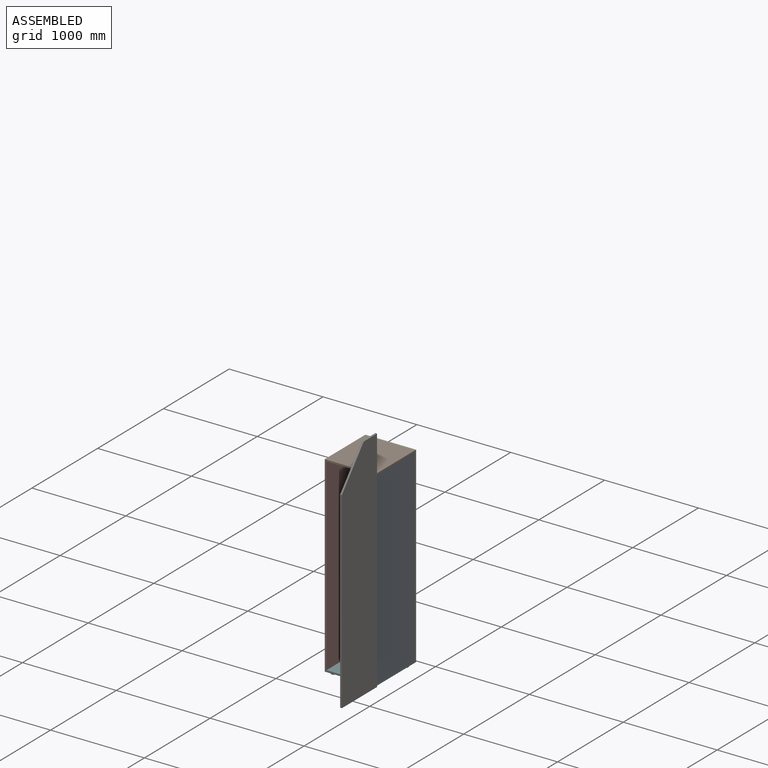
[diagram: assembled view]
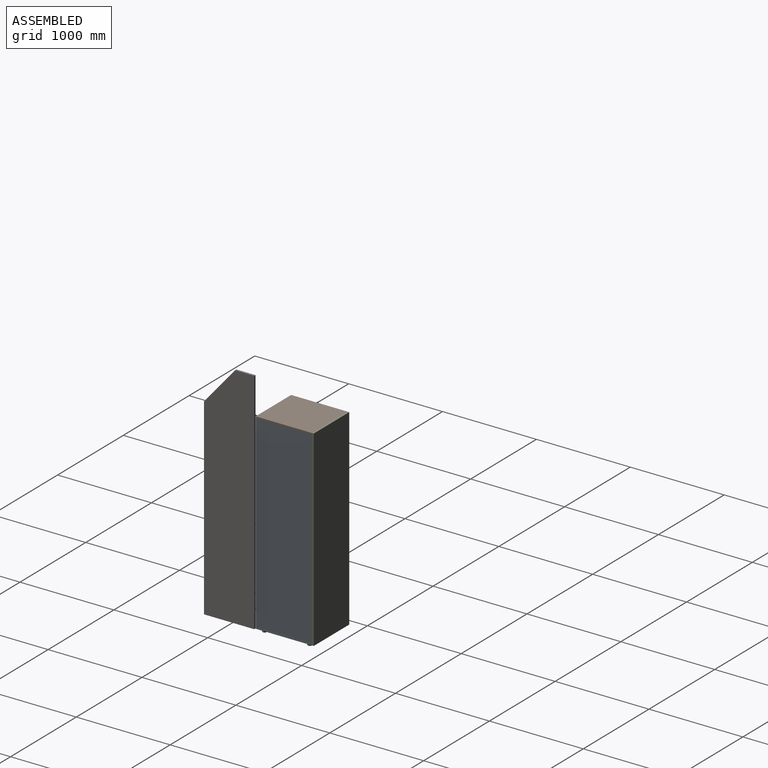
[diagram: assembled view, second angle]
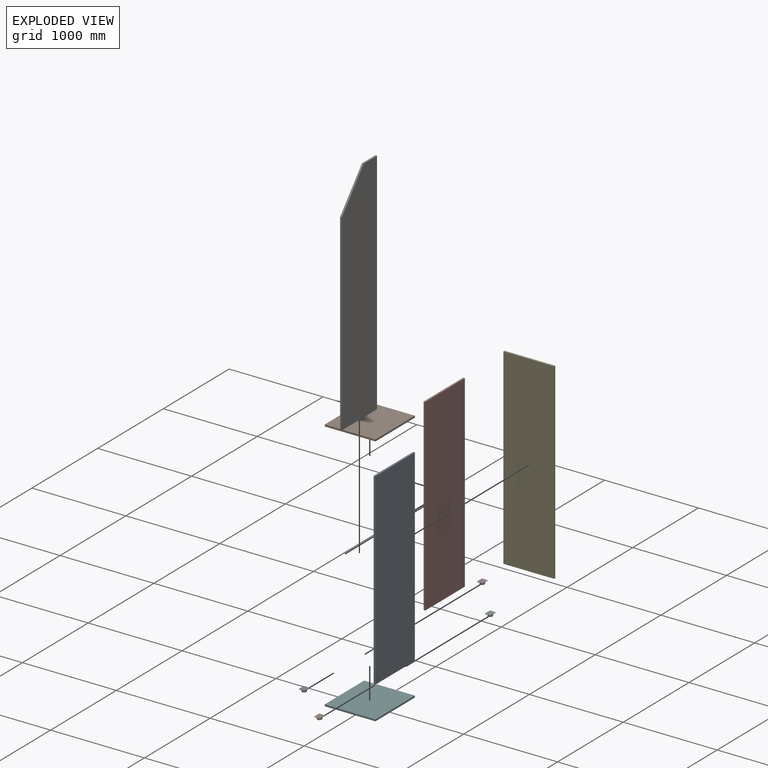
[diagram: exploded view]
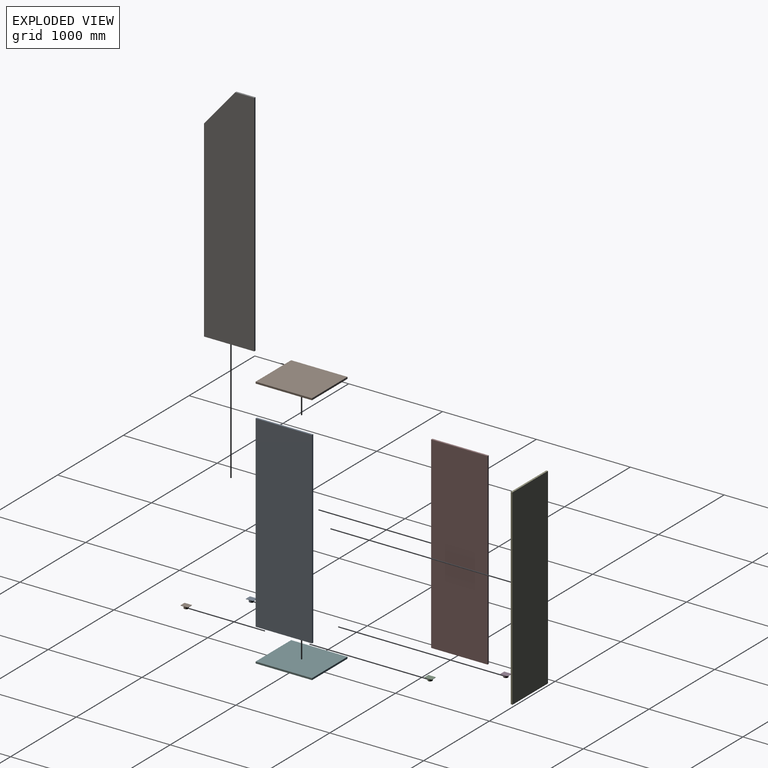
[diagram: exploded view, second angle]
FCSTD DOCUMENT  (FreeCAD 1.0RUnknown)
Label: wardrobe_corpus00_jan
License: All rights reserved
LicenseURL: https://en.wikipedia.org/wiki/All_rights_reserved
objects: App::Link×17, App::FeaturePython×11, Assembly::AssemblyLink×1, Assembly::JointGroup×1, Assembly::AssemblyObject×1
EXTERNAL_REF file=parts/wardrobe_base_jan.FCStd obj=Body
EXTERNAL_REF file=parts/wardrobe_right_corpus00_jan.FCStd obj=Body002
EXTERNAL_REF file=parts/wardrobe_left_corpus00_jan.FCStd obj=Body001
EXTERNAL_REF file=parts/wardrobe_top_jan.FCStd obj=Body003
EXTERNAL_REF file=parts/wardrobe_backplate_corpus00_jan.FCStd obj=Body004
EXTERNAL_REF file=../purchased parts/hettich-level-adjustment.FCStd obj=Body
EXTERNAL_REF file=parts/wardrobe_door_corpus00_jan.FCStd obj=Body
EXTERNAL_REF file=wardrobe_drawer_jan.FCStd obj=Assembly
EXTERNAL_REF file=wardrobe_drawer_jan.FCStd obj=hettich_rail_550
EXTERNAL_REF file=wardrobe_drawer_jan.FCStd obj=hettich_rail_551
EXTERNAL_REF file=wardrobe_drawer_jan.FCStd obj=drawer_sides
EXTERNAL_REF file=wardrobe_drawer_jan.FCStd obj=drawer_sides001
EXTERNAL_REF file=wardrobe_drawer_jan.FCStd obj=drawer_back
EXTERNAL_REF file=wardrobe_drawer_jan.FCStd obj=drawer_bottom
EXTERNAL_REF file=wardrobe_drawer_jan.FCStd obj=drawer_front

FEATURE [App::Link] wardrobe_base_jan
  LinkedObject = -> <external parts/wardrobe_base_jan.FCStd>#Body
FEATURE [App::FeaturePython] GroundedJoint  # Assembly grounded joint (typed FeaturePython)
  ObjectToGround = -> wardrobe_base_jan
FEATURE [App::Link] wardrobe_right_jan_corpus00  label="wardrobe_right_corpus00_jan"
  LinkPlacement = pos=(251,2.07e-13,1022.5) rot=(0,0,1;0rad)
  LinkedObject = -> <external parts/wardrobe_right_corpus00_jan.FCStd>#Body002
  Placement = pos=(251,2.07e-13,1022.5) rot=(0,0,1;0rad)
FEATURE [App::Link] wardrobe_left_jan_corpus00  label="wardrobe_left_corpus00_jan"
  LinkPlacement = pos=(-270,2.1e-13,1022.5) rot=(0,0,1;0rad)
  LinkedObject = -> <external parts/wardrobe_left_corpus00_jan.FCStd>#Body001
  Placement = pos=(-270,2.1e-13,1022.5) rot=(0,0,1;0rad)
FEATURE [App::Link] wardrobe_top_jan
  LinkPlacement = pos=(-6.835e-13,3.905e-13,2026) rot=(0,0,1;0rad)
  LinkedObject = -> <external parts/wardrobe_top_jan.FCStd>#Body003
  Placement = pos=(-6.835e-13,3.905e-13,2026) rot=(0,0,1;0rad)
FEATURE [App::Link] wardrobe_backplate_jan_corpus00  label="wardrobe_backplate_corpus00_jan"
  LinkPlacement = pos=(-3e-15,300,1022.5) rot=(0,0,1;3.14159rad)
  LinkedObject = -> <external parts/wardrobe_backplate_corpus00_jan.FCStd>#Body004
  Placement = pos=(-3e-15,300,1022.5) rot=(0,0,1;3.14159rad)
FEATURE [App::FeaturePython] Joint002  label="StarrerVerbund002"  # Assembly joint (typed FeaturePython)
  Activated = true
  AngleMax = 0
  AngleMin = 0
  Detach1 = false
  Detach2 = false
  Distance = 0
  Distance2 = 0
  EnableAngleMax = false
  EnableAngleMin = false
  EnableLengthMax = false
  EnableLengthMin = false
  JointType = 0 (Fixed)
  LengthMax = 0
  LengthMin = 0
  Offset2 = pos=(0,0,0) rot=(0,0,1;3.14159rad)
  Placement1 = pos=(-3e-15,0,-1022.5) rot=(0.707107,0,0.707107;3.14159rad)
  Placement2 = pos=(0,300,0) rot=(0,1,0;4.71239rad)
  Reference1 = -> Assembly [wardrobe_backplate_jan_corpus00.Edge3,wardrobe_backplate_jan_corpus00.Edge3]
  Reference2 = -> Assembly [wardrobe_base_jan.Edge9,wardrobe_base_jan.Edge9]
FEATURE [App::FeaturePython] Joint  label="StarrerVerbund"  # Assembly joint (typed FeaturePython)
  Activated = true
  AngleMax = 0
  AngleMin = 0
  Detach1 = false
  Detach2 = false
  Distance = 0
  Distance2 = 0
  EnableAngleMax = false
  EnableAngleMin = false
  EnableLengthMax = false
  EnableLengthMin = false
  JointType = 0 (Fixed)
  LengthMax = 0
  LengthMin = 0
  Placement1 = pos=(19,-2.07e-13,-1003.5) rot=(0.57735,0.57735,0.57735;4.18879rad)
  Placement2 = pos=(270,0,19) rot=(0.57735,0.57735,0.57735;4.18879rad)
  Reference1 = -> Assembly [wardrobe_right_jan_corpus00.Edge4,wardrobe_right_jan_corpus00.Edge4]
  Reference2 = -> Assembly [wardrobe_base_jan.Edge7,wardrobe_base_jan.Edge7]
FEATURE [App::FeaturePython] Joint003  label="StarrerVerbund003"  # Assembly joint (typed FeaturePython)
  Activated = true
  AngleMax = 0
  AngleMin = 0
  Detach1 = false
  Detach2 = false
  Distance = 0
  Distance2 = 0
  EnableAngleMax = false
  EnableAngleMin = false
  EnableLengthMax = false
  EnableLengthMin = false
  JointType = 0 (Fixed)
  LengthMax = 0
  LengthMin = 0
  Offset2 = pos=(0,0,0) rot=(0,0,1;3.14159rad)
  Placement1 = pos=(3.411e-13,-2.1e-13,-1003.5) rot=(0.57735,0.57735,0.57735;4.18879rad)
  Placement2 = pos=(-270,0,19) rot=(-0.57735,0.57735,-0.57735;4.18879rad)
  Reference1 = -> Assembly [wardrobe_left_jan_corpus00.Edge3,wardrobe_left_jan_corpus00.Edge3]
  Reference2 = -> Assembly [wardrobe_base_jan.Edge12,wardrobe_base_jan.Edge12]
FEATURE [App::FeaturePython] Joint004  label="StarrerVerbund004"  # Assembly joint (typed FeaturePython)
  Activated = true
  AngleMax = 0
  AngleMin = 0
  Detach1 = false
  Detach2 = false
  Distance = 0
  Distance2 = 0
  EnableAngleMax = false
  EnableAngleMin = false
  EnableLengthMax = false
  EnableLengthMin = false
  JointType = 0 (Fixed)
  LengthMax = 0
  LengthMin = 0
  Offset2 = pos=(0,0,0) rot=(0,0,1;3.14159rad)
  Placement1 = pos=(270,4.3e-15,0) rot=(0.57735,0.57735,0.57735;4.18879rad)
  Placement2 = pos=(19,2.477e-13,1003.5) rot=(-0.57735,0.57735,-0.57735;4.18879rad)
  Reference1 = -> Assembly [wardrobe_top_jan.Edge6,wardrobe_top_jan.Edge6]
  Reference2 = -> Assembly [wardrobe_right_jan_corpus00.Edge10,wardrobe_right_jan_corpus00.Edge10]
FEATURE [App::Link] hettich_level_adjustment  label="hettich-level-adjustment"
  LinkPlacement = pos=(-218.25,-240,-1.33e-14) rot=(0.707107,-0.707107,0;3.14159rad)
  LinkedObject = -> <external ../purchased parts/hettich-level-adjustment.FCStd>#Body
  Placement = pos=(-218.25,-240,-1.33e-14) rot=(0.707107,-0.707107,0;3.14159rad)
FEATURE [App::FeaturePython] Joint005  label="StarrerVerbund005"  # Assembly joint (typed FeaturePython)
  Activated = true
  AngleMax = 0
  AngleMin = 0
  Detach1 = false
  Detach2 = false
  Distance = 0
  Distance2 = 0
  EnableAngleMax = false
  EnableAngleMin = false
  EnableLengthMax = false
  EnableLengthMin = false
  JointType = 0 (Fixed)
  LengthMax = 0
  LengthMin = 0
  Offset1 = pos=(0,-20,-60) rot=(0,0,1;0rad)
  Offset2 = pos=(0,0,0) rot=(0,0,1;3.14159rad)
  Placement1 = pos=(60,51.75,0) rot=(-0.707107,0,0.707107;3.14159rad)
  Placement2 = pos=(-270,-300,0) rot=(-0.57735,0.57735,-0.57735;4.18879rad)
  Reference1 = -> Assembly [hettich_level_adjustment.Edge25,hettich_level_adjustment.Edge25]
  Reference2 = -> Assembly [wardrobe_base_jan.Edge11,wardrobe_base_jan.Vertex1]
FEATURE [App::Link] hettich_level_adjustment001  label="hettich-level-adjustment001"
  LinkPlacement = pos=(218.25,-240,-3.9e-15) rot=(0.707107,-0.707107,0;3.14159rad)
  LinkedObject = -> <external ../purchased parts/hettich-level-adjustment.FCStd>#Body
  Placement = pos=(218.25,-240,-3.9e-15) rot=(0.707107,-0.707107,0;3.14159rad)
FEATURE [App::Link] hettich_level_adjustment002  label="hettich-level-adjustment002"
  LinkPlacement = pos=(218.25,240,-1.33e-14) rot=(0.707107,-0.707107,0;3.14159rad)
  LinkedObject = -> <external ../purchased parts/hettich-level-adjustment.FCStd>#Body
  Placement = pos=(218.25,240,-1.33e-14) rot=(0.707107,-0.707107,0;3.14159rad)
FEATURE [App::Link] hettich_level_adjustment003  label="hettich-level-adjustment003"
  LinkPlacement = pos=(-218.25,240,1.33e-14) rot=(0.707107,0.707107,0;3.14159rad)
  LinkedObject = -> <external ../purchased parts/hettich-level-adjustment.FCStd>#Body
  Placement = pos=(-218.25,240,1.33e-14) rot=(0.707107,0.707107,0;3.14159rad)
FEATURE [App::FeaturePython] Joint006  label="StarrerVerbund006"  # Assembly joint (typed FeaturePython)
  Activated = true
  AngleMax = 0
  AngleMin = 0
  Detach1 = false
  Detach2 = false
  Distance = 0
  Distance2 = 0
  EnableAngleMax = false
  EnableAngleMin = false
  EnableLengthMax = false
  EnableLengthMin = false
  JointType = 0 (Fixed)
  LengthMax = 0
  LengthMin = 0
  Offset1 = pos=(0,-20,60) rot=(0,0,1;0rad)
  Offset2 = pos=(0,0,0) rot=(0,0,1;3.14159rad)
  Placement1 = pos=(250,-240,0) rot=(0.57735,0.57735,0.57735;4.18879rad)
  Placement2 = pos=(0,-31.75,0) rot=(0,-1,0;4.71239rad)
  Reference1 = -> Assembly [wardrobe_base_jan.Edge6,wardrobe_base_jan.Vertex3]
  Reference2 = -> Assembly [hettich_level_adjustment001.Edge10,hettich_level_adjustment001.Edge10]
FEATURE [App::FeaturePython] Joint007  label="StarrerVerbund007"  # Assembly joint (typed FeaturePython)
  Activated = true
  AngleMax = 0
  AngleMin = 0
  Detach1 = false
  Detach2 = false
  Distance = 0
  Distance2 = 0
  EnableAngleMax = false
  EnableAngleMin = false
  EnableLengthMax = false
  EnableLengthMin = false
  JointType = 0 (Fixed)
  LengthMax = 0
  LengthMin = 0
  Offset1 = pos=(0,20,-60) rot=(0,0,1;0rad)
  Offset2 = pos=(0,0,0) rot=(0,0,1;3.14159rad)
  Placement1 = pos=(-60,-51.75,0) rot=(0.707107,0,0.707107;3.14159rad)
  Placement2 = pos=(270,300,0) rot=(0.57735,-0.57735,-0.57735;4.18879rad)
  Reference1 = -> Assembly [hettich_level_adjustment002.Edge10,hettich_level_adjustment002.Edge10]
  Reference2 = -> Assembly [wardrobe_base_jan.Edge6,wardrobe_base_jan.Vertex5]
FEATURE [App::FeaturePython] Joint008  label="StarrerVerbund008"  # Assembly joint (typed FeaturePython)
  Activated = true
  AngleMax = 0
  AngleMin = 0
  Detach1 = false
  Detach2 = false
  Distance = 0
  Distance2 = 0
  EnableAngleMax = false
  EnableAngleMin = false
  EnableLengthMax = false
  EnableLengthMin = false
  JointType = 0 (Fixed)
  LengthMax = 0
  LengthMin = 0
  Offset1 = pos=(0,20,60) rot=(0,0,1;0rad)
  Placement1 = pos=(60,-51.75,0) rot=(0.707107,0,0.707107;3.14159rad)
  Placement2 = pos=(-270,300,0) rot=(-0.57735,-0.57735,0.57735;4.18879rad)
  Reference1 = -> Assembly [hettich_level_adjustment003.Edge10,hettich_level_adjustment003.Edge10]
  Reference2 = -> Assembly [wardrobe_base_jan.Edge11,wardrobe_base_jan.Vertex7]
FEATURE [App::Link] wardrobe_door_corpus00_jan
  LinkPlacement = pos=(270,-302,2.5) rot=(0.57735,0.57735,0.57735;2.0944rad)
  LinkedObject = -> <external parts/wardrobe_door_corpus00_jan.FCStd>#Body
  Placement = pos=(270,-302,2.5) rot=(0.57735,0.57735,0.57735;2.0944rad)
FEATURE [App::FeaturePython] Joint009  label="Drehverbindung"  # Assembly joint (typed FeaturePython)
  Activated = true
  AngleMax = 90
  AngleMin = 0
  Detach1 = false
  Detach2 = false
  Distance = 0
  Distance2 = 0
  EnableAngleMax = true
  EnableAngleMin = true
  EnableLengthMax = false
  EnableLengthMin = false
  JointType = 1 (Revolute)
  LengthMax = 0
  LengthMin = 0
  Offset1 = pos=(0,2,0) rot=(0,0,1;0rad)
  Offset2 = pos=(0,0,2.5) rot=(0,0,1;0rad)
  Placement1 = pos=(2,0,0) rot=(0.57735,0.57735,0.57735;4.18879rad)
  Placement2 = pos=(270,-300,2.5) rot=(0,0,1;0rad)
  Reference1 = -> Assembly [wardrobe_door_corpus00_jan.Edge3,wardrobe_door_corpus00_jan.Vertex1]
  Reference2 = -> Assembly [wardrobe_base_jan.Edge2,wardrobe_base_jan.Vertex3]
FEATURE [App::Link] hettich_rail_550
  LinkPlacement = pos=(0,-8.67788e-07,0) rot=(0.57735,0.57735,0.57735;2.0944rad)
  LinkedObject = -> <external wardrobe_drawer_jan.FCStd>#hettich_rail_550
  Placement = pos=(0,-8.67788e-07,0) rot=(0.57735,0.57735,0.57735;2.0944rad)
FEATURE [App::Link] hettich_rail_551  label="hettich_rail_550_1"
  LinkPlacement = pos=(502,3.32992e-05,-3.4167e-05) rot=(0.57735,-0.57735,-0.57735;2.0944rad)
  LinkedObject = -> <external wardrobe_drawer_jan.FCStd>#hettich_rail_551
  Placement = pos=(502,3.32992e-05,-3.4167e-05) rot=(0.57735,-0.57735,-0.57735;2.0944rad)
FEATURE [App::Link] drawer_sides
  LinkPlacement = pos=(22,256,72.5) rot=(-0.340731,0.659269,0.659269;0rad)
  LinkedObject = -> <external wardrobe_drawer_jan.FCStd>#drawer_sides
  Placement = pos=(22,256,72.5) rot=(-0.340731,0.659269,0.659269;0rad)
FEATURE [App::Link] drawer_sides001
  LinkPlacement = pos=(480,-256,72.5) rot=(0,0,1;3.14159rad)
  LinkedObject = -> <external wardrobe_drawer_jan.FCStd>#drawer_sides001
  Placement = pos=(480,-256,72.5) rot=(0,0,1;3.14159rad)
FEATURE [App::Link] drawer_back
  LinkPlacement = pos=(489.5,265.5,80.75) rot=(0,0,-1;1.5708rad)
  LinkedObject = -> <external wardrobe_drawer_jan.FCStd>#drawer_back
  Placement = pos=(489.5,265.5,80.75) rot=(0,0,-1;1.5708rad)
FEATURE [App::Link] drawer_bottom
  LinkPlacement = pos=(251,5.75002,-2.50002) rot=(0,0,1;3.14159rad)
  LinkedObject = -> <external wardrobe_drawer_jan.FCStd>#drawer_bottom
  Placement = pos=(251,5.75002,-2.50002) rot=(0,0,1;3.14159rad)
FEATURE [App::Link] drawer_front
  LinkPlacement = pos=(12.5,-265.5,72.5) rot=(0,0,1;1.5708rad)
  LinkedObject = -> <external wardrobe_drawer_jan.FCStd>#drawer_front
  Placement = pos=(12.5,-265.5,72.5) rot=(0,0,1;1.5708rad)
FEATURE [Assembly::AssemblyLink] wardrobe_drawer_jan
  Group = -> [hettich_rail_550,hettich_rail_551,drawer_sides,drawer_sides001,drawer_back,drawer_bottom,drawer_front]
  LinkedObject = -> <external wardrobe_drawer_jan.FCStd>#Assembly
  Origin = -> Origin001
  Placement = pos=(-251,8.67788e-07,56.5) rot=(0.340731,-0.659269,-0.659269;0rad)
  Rigid = true
FEATURE [App::FeaturePython] Joint010  label="StarrerVerbund009"  # Assembly joint (typed FeaturePython)
  Activated = true
  AngleMax = 0
  AngleMin = 0
  Detach1 = false
  Detach2 = false
  Distance = 0
  Distance2 = 0
  EnableAngleMax = false
  EnableAngleMin = false
  EnableLengthMax = false
  EnableLengthMin = false
  JointType = 0 (Fixed)
  LengthMax = 0
  LengthMin = 0
  Offset1 = pos=(0,20,0) rot=(0,0,1;0rad)
  Offset2 = pos=(0,0,0) rot=(0,0,1;1.5708rad)
  Placement1 = pos=(-3.52e-14,-37.5,-1.6e-15) rot=(0.707107,0,0.707107;3.14159rad)
  Placement2 = pos=(19,-2.1e-13,-1003.5) rot=(1,0,0;4.71239rad)
  Reference1 = -> Assembly [wardrobe_drawer_jan.hettich_rail_550.Edge3,wardrobe_drawer_jan.hettich_rail_550.Edge3]
  Reference2 = -> Assembly [wardrobe_left_jan_corpus00.Edge4,wardrobe_left_jan_corpus00.Edge4]
FEATURE [Assembly::JointGroup] Joints
  Group = -> [GroundedJoint,Joint002,Joint,Joint003,Joint004,Joint005,Joint006,Joint007,Joint008,Joint009,Joint010]
FEATURE [Assembly::AssemblyObject] Assembly  label="wardrobe_corpus00_jan"
  Group = -> [Joints,wardrobe_base_jan,GroundedJoint,wardrobe_right_jan_corpus00,wardrobe_left_jan_corpus00,wardrobe_top_jan,wardrobe_backplate_jan_corpus00,Joint002,Joint,Joint003,Joint004,hettich_level_adjustment,Joint005,hettich_level_adjustment001,hettich_level_adjustment002,hettich_level_adjustment003,Joint006,Joint007,Joint008,wardrobe_door_corpus00_jan,Joint009,wardrobe_drawer_jan,Joint010]
  Origin = -> Origin
  Type = Assembly

RESOLVED EXTERNAL PARTS (link-assembly join: the EXTERNAL_REF files above that resolve inside this repo's crawl, each included once):
---- part parts/wardrobe_backplate_corpus00_jan.FCStd = doc fcstd_ef48b797989f ----
FCSTD DOCUMENT  (FreeCAD 1.0RUnknown)
Label: wardrobe_backplate_corpus00_jan
License: All rights reserved
LicenseURL: https://en.wikipedia.org/wiki/All_rights_reserved
objects: PartDesign::CoordinateSystem×2, Sketcher::SketchObject×1, PartDesign::Pad×1, PartDesign::Body×1
note: 8 computed .brp shape members not serialized (recipe doc carries the construction recipe); baked Part::Feature solids carry a one-line shape summary decoded from their .brp
EXTERNAL_REF file=../../mastersketch.FCStd obj=Spreadsheet

FEATURE [Sketcher::SketchObject] Sketch004
  ArcFitTolerance = 1e-06
  AttachmentSupport = -> [XZ_Plane006]
  FullyConstrained = true
  MakeInternals = false
  MapMode = 5
  Placement = pos=(0,0,0) rot=(1,0,0;1.5708rad)
  expr: Constraints[10] = mastersketch#Spreadsheet.corpus_width
  expr: Constraints[11] = mastersketch#Spreadsheet.corpus_height
  sketch-geometry (5):
    g0: LineSegment StartX=-270 StartY=-1022.5 StartZ=0 EndX=270 EndY=-1022.5 EndZ=0
    g1: LineSegment StartX=270 StartY=-1022.5 StartZ=0 EndX=270 EndY=1022.5 EndZ=0
    g2: LineSegment StartX=270 StartY=1022.5 StartZ=0 EndX=-270 EndY=1022.5 EndZ=0
    g3: LineSegment StartX=-270 StartY=1022.5 StartZ=0 EndX=-270 EndY=-1022.5 EndZ=0
    g4: GeomPoint [constr] X=0 Y=0 Z=0
  constraints (12):
    c: Coincident(g0,g1)
    c: Coincident(g1,g2)
    c: Coincident(g2,g3)
    c: Coincident(g3,g0)
    c: Horizontal(g0)
    c: Horizontal(g2)
    c: Vertical(g1)
    c: Vertical(g3)
    c: Symmetric(g2,g0,g4)
    c: Coincident(g4,g-1)
    c: DistanceX(g0,g0) = 540
    c: DistanceY(g3,g3) = 2045
FEATURE [PartDesign::Pad] Pad004
  Direction = (0,-1,2e-16)
  Length = 19
  Length2 = 10
  Placement = pos=(0,0,0) rot=(1,0,0;1.5708rad)
  Profile = -> Sketch004
  ReferenceAxis = -> Sketch004 [N_Axis]
  Refine = true
  Suppressed = false
  Type = 0
  expr: Length = mastersketch#Spreadsheet.corpus_backplate_thickness
FEATURE [PartDesign::CoordinateSystem] LCS_bottom
  AttacherType = Attacher::AttachEngine3D
  AttachmentSupport = -> [Pad004]
  MapMode = 45
  Placement = pos=(0,-19,-1022.5) rot=(0.57735,0.57735,0.57735;2.0944rad)
FEATURE [PartDesign::CoordinateSystem] LCS_back_right
  AttacherType = Attacher::AttachEngine3D
FEATURE [PartDesign::Body] Body004  label="wardrobe_backplate_corpus00_jan"
  AllowCompound = false
  Group = -> [Sketch004,Pad004,LCS_bottom,LCS_back_right]
  Origin = -> Origin006
  Tip = -> Pad004
---- part parts/wardrobe_base_jan.FCStd = doc fcstd_ceb563eaf676 ----
FCSTD DOCUMENT  (FreeCAD 1.0RUnknown)
Label: wardrobe_base_jan
License: All rights reserved
LicenseURL: https://en.wikipedia.org/wiki/All_rights_reserved
objects: PartDesign::CoordinateSystem×9, Sketcher::SketchObject×2, PartDesign::Pad×1, PartDesign::Body×1
note: 17 computed .brp shape members not serialized (recipe doc carries the construction recipe); baked Part::Feature solids carry a one-line shape summary decoded from their .brp
EXTERNAL_REF file=../../mastersketch.FCStd obj=Spreadsheet

FEATURE [Sketcher::SketchObject] Sketch
  ArcFitTolerance = 1e-06
  AttachmentSupport = -> [XY_Plane]
  FullyConstrained = true
  MakeInternals = false
  MapMode = 5
  expr: Constraints[10] = mastersketch#Spreadsheet.corpus_width
  expr: Constraints[11] = mastersketch#Spreadsheet.corpus_depth
  sketch-geometry (5):
    g0: LineSegment StartX=-270 StartY=-300 StartZ=0 EndX=270 EndY=-300 EndZ=0
    g1: LineSegment StartX=270 StartY=-300 StartZ=0 EndX=270 EndY=300 EndZ=0
    g2: LineSegment StartX=270 StartY=300 StartZ=0 EndX=-270 EndY=300 EndZ=0
    g3: LineSegment StartX=-270 StartY=300 StartZ=0 EndX=-270 EndY=-300 EndZ=0
    g4: GeomPoint [constr] X=0 Y=0 Z=0
  constraints (12):
    c: Coincident(g0,g1)
    c: Coincident(g1,g2)
    c: Coincident(g2,g3)
    c: Coincident(g3,g0)
    c: Horizontal(g0)
    c: Horizontal(g2)
    c: Vertical(g1)
    c: Vertical(g3)
    c: Symmetric(g2,g0,g4)
    c: Coincident(g4,g-1)
    c: DistanceX(g0,g0) = 540
    c: DistanceY(g3,g3) = 600
FEATURE [PartDesign::Pad] Pad
  Direction = (0,0,1)
  Length = 19
  Length2 = 10
  Profile = -> Sketch
  ReferenceAxis = -> Sketch [N_Axis]
  Refine = true
  Suppressed = false
  Type = 0
  expr: Length = mastersketch#Spreadsheet.corpus_outer_thickness
FEATURE [PartDesign::CoordinateSystem] LCS_1  label="LCS_left"
  AttacherType = Attacher::AttachEngine3D
  AttachmentSupport = -> [Pad]
  MapMode = 45
  Placement = pos=(-270,1.42e-14,19) rot=(0,0.707107,0.707107;3.14159rad)
FEATURE [PartDesign::CoordinateSystem] LCS_right  label="LCS-right"
  AttacherType = Attacher::AttachEngine3D
  AttachmentSupport = -> [Pad]
  MapMode = 45
  Placement = pos=(270,-1.42e-14,19) rot=(0,0.707107,0.707107;3.14159rad)
FEATURE [PartDesign::CoordinateSystem] LCS_center
  AttacherType = Attacher::AttachEngine3D
FEATURE [Sketcher::SketchObject] Sketch_1  label="feet_placement"
  ArcFitTolerance = 1e-06
  AttachmentSupport = -> [Pad]
  FullyConstrained = true
  MakeInternals = false
  MapMode = 5
  Placement = pos=(0,0,0) rot=(1,0,0;3.14159rad)
  expr: Constraints[10] = mastersketch#Spreadsheet.corpus_width - 100
  expr: Constraints[11] = mastersketch#Spreadsheet.corpus_depth - 140
  sketch-geometry (5):
    g0: LineSegment StartX=-220 StartY=-230 StartZ=0 EndX=220 EndY=-230 EndZ=0
    g1: LineSegment StartX=220 StartY=-230 StartZ=0 EndX=220 EndY=230 EndZ=0
    g2: LineSegment StartX=220 StartY=230 StartZ=0 EndX=-220 EndY=230 EndZ=0
    g3: LineSegment StartX=-220 StartY=230 StartZ=0 EndX=-220 EndY=-230 EndZ=0
    g4: GeomPoint [constr] X=0 Y=0 Z=0
  constraints (12):
    c: Coincident(g0,g1)
    c: Coincident(g1,g2)
    c: Coincident(g2,g3)
    c: Coincident(g3,g0)
    c: Horizontal(g0)
    c: Horizontal(g2)
    c: Vertical(g1)
    c: Vertical(g3)
    c: Symmetric(g2,g0,g4)
    c: Coincident(g4,g-1)
    c: DistanceX(g0,g0) = 440
    c: DistanceY(g3,g3) = 460
FEATURE [PartDesign::CoordinateSystem] LCS_2  label="LCS_feet0"
  AttacherType = Attacher::AttachEngine3D
  AttachmentSupport = -> [Sketch_1]
  MapMode = 1
  Placement = pos=(-220,-230,0) rot=(0,0,1;0rad)
FEATURE [PartDesign::CoordinateSystem] LCS_feet1
  AttacherType = Attacher::AttachEngine3D
  AttachmentSupport = -> [Sketch_1]
  MapMode = 1
  Placement = pos=(220,-230,0) rot=(0,0,1;0rad)
FEATURE [PartDesign::CoordinateSystem] LCS_feet2
  AttacherType = Attacher::AttachEngine3D
  AttachmentSupport = -> [Sketch_1]
  MapMode = 1
  Placement = pos=(220,230,0) rot=(0,0,1;0rad)
FEATURE [PartDesign::CoordinateSystem] LCS_feet3
  AttacherType = Attacher::AttachEngine3D
  AttachmentSupport = -> [Sketch_1]
  MapMode = 1
  Placement = pos=(-220,230,0) rot=(0,0,1;0rad)
FEATURE [PartDesign::CoordinateSystem] LCS_back
  AttacherType = Attacher::AttachEngine3D
  AttachmentSupport = -> [Pad]
  MapMode = 45
  Placement = pos=(0,300,0) rot=(0.57735,0.57735,0.57735;2.0944rad)
FEATURE [PartDesign::CoordinateSystem] LCS_door
  AttacherType = Attacher::AttachEngine3D
  AttachmentSupport = -> [Pad]
  MapMode = 7
  Placement = pos=(270,-300,0) rot=(0,1,0;3.14159rad)
FEATURE [PartDesign::Body] Body  label="wardrobe_base_jan"
  AllowCompound = false
  Group = -> [Sketch,Pad,LCS_1,LCS_right,LCS_center,Sketch_1,LCS_2,LCS_feet1,LCS_feet2,LCS_feet3,LCS_back,LCS_door]
  Origin = -> Origin
  Tip = -> Pad
---- part parts/wardrobe_door_corpus00_jan.FCStd = doc fcstd_de45f609bab9 ----
FCSTD DOCUMENT  (FreeCAD 1.0R39285 (Git))
Label: wardrobe_door_corpus00_jan
License: All rights reserved
LicenseURL: https://en.wikipedia.org/wiki/All_rights_reserved
objects: TechDraw::DrawViewDimension×7, PartDesign::CoordinateSystem×2, TechDraw::DrawProjGroupItem×2, Sketcher::SketchObject×1, PartDesign::Pad×1, PartDesign::Body×1, TechDraw::DrawSVGTemplate×1, TechDraw::DrawViewAnnotation×1, App::Part×1, TechDraw::DrawPage×1
note: 17 computed .brp shape members not serialized (recipe doc carries the construction recipe); baked Part::Feature solids carry a one-line shape summary decoded from their .brp
EXTERNAL_REF file=../../mastersheet.FCStd obj=Spreadsheet
EXTERNAL_REF file=../../mastersketch.FCStd obj=Sketch

FEATURE [Sketcher::SketchObject] Sketch
  ArcFitTolerance = 1e-06
  AttachmentSupport = -> [XY_Plane]
  FullyConstrained = true
  MakeInternals = false
  MapMode = 5
  expr: Constraints[0] = mastersketch#Sketch.Constraints.corpus00_door_height
  expr: Constraints[12] = mastersketch#Sketch.Constraints.alpha
  expr: Constraints[13] = mastersketch#Sketch.Constraints.corpus00_door_top
  expr: Constraints[5] = mastersheet#Spreadsheet.corpus_width - 5
  sketch-geometry (5):
    g0: LineSegment StartX=0 StartY=0 StartZ=0 EndX=0 EndY=2440 EndZ=0
    g1: LineSegment StartX=0 StartY=2440 StartZ=0 EndX=-202.892 EndY=2440 EndZ=0
    g2: LineSegment StartX=0 StartY=0 StartZ=0 EndX=-535 EndY=0 EndZ=0
    g3: LineSegment StartX=-535 StartY=0 StartZ=0 EndX=-535 EndY=2051.4 EndZ=0
    g4: LineSegment StartX=-535 StartY=2051.4 StartZ=0 EndX=-202.892 EndY=2440 EndZ=0
  constraints (14):
    c: Distance(g0) = 2440
    c: Coincident(g0,g-1)
    c: Vertical(g0)
    c: Coincident(g1,g0)
    c: Horizontal(g1)
    c: Distance(g2) = 535
    c: Coincident(g2,g0)
    c: PointOnObject(g2,g-1)
    c: Vertical(g3)
    c: Coincident(g4,g1)
    c: Coincident(g4,g3)
    c: Coincident(g3,g2)
    c: Angle(g3,g4) = 2.43442
    c: DistanceX(g1,g1) = 202.892
FEATURE [PartDesign::Pad] Pad
  Direction = (0,0,1)
  Length = 19
  Length2 = 10
  Profile = -> Sketch
  ReferenceAxis = -> Sketch [N_Axis]
  Refine = true
  Suppressed = false
  Type = 0
FEATURE [PartDesign::Body] Body  label="wardrobe_door_corpus00_jan"
  AllowCompound = false
  Group = -> [Sketch,Pad]
  Origin = -> Origin
  Tip = -> Pad
FEATURE [PartDesign::CoordinateSystem] LCS_right
  AttacherType = Attacher::AttachEngine3D
  AttachmentSupport = -> [Pad]
  MapMode = 7
  Placement = pos=(0,0,0) rot=(1,0,0;1.5708rad)
FEATURE [TechDraw::DrawSVGTemplate] Template  label="Vorlage"
  Height = 210
  Orientation = 1
  Template = <userpath>/scoop/apps/freecad/current/data/Mod/TechDraw/Templates/A4_Landscape_TD.svg
  Width = 297
FEATURE [TechDraw::DrawProjGroupItem] View  label="Oben"
  CoarseView = false
  Direction = (0,0,-1)
  Focus = 100
  HardHidden = false
  IsoCount = 0
  IsoHidden = false
  IsoVisible = false
  LockPosition = false
  Perspective = false
  Rotation = 0
  RotationVector = (1,0,0)
  Scale = 0.1
  ScaleType = 2
  ScrubCount = 1
  SeamHidden = false
  SeamVisible = false
  SmoothHidden = false
  SmoothVisible = true
  Source = -> [Body]
  Type = 0
  X = 142.185
  XDirection = (1e-16,-1,0)
  Y = 151.82
FEATURE [TechDraw::DrawProjGroupItem] View001  label="Seite"
  CoarseView = false
  Direction = (-1,-1e-16,0)
  Focus = 100
  HardHidden = false
  IsoCount = 0
  IsoHidden = false
  IsoVisible = false
  LockPosition = false
  Perspective = false
  Rotation = 0
  RotationVector = (1,0,0)
  Scale = 0.1
  ScaleType = 2
  ScrubCount = 1
  SeamHidden = false
  SeamVisible = false
  SmoothHidden = false
  SmoothVisible = true
  Source = -> [Body]
  Type = 0
  X = 143.628
  XDirection = (1e-16,-1,0)
  Y = 90.5756
FEATURE [TechDraw::DrawViewDimension] Dimension  label="Maß"
  AngleOverride = false
  Arbitrary = false
  ArbitraryTolerances = false
  BoxCorners = (2) [(-122,-26.75,0),(122,26.75,0)]
  EqualTolerance = true
  ExtensionAngle = 0
  FormatSpec = %.2w
  FormatSpecOverTolerance = %+.2w
  FormatSpecUnderTolerance = %+.2w
  Inverted = false
  LineAngle = 0
  LockPosition = false
  MeasureType = 1
  OverTolerance = 0
  References2D = -> [View]
  Rotation = 0
  ScaleType = 0
  TheoreticalExact = false
  Type = 0
  UnderTolerance = 0
  X = 129.212
  Y = 0
FEATURE [TechDraw::DrawViewDimension] Dimension001  label="Maß001"
  AngleOverride = false
  Arbitrary = false
  ArbitraryTolerances = false
  BoxCorners = (2) [(-122,-26.75,0),(122,26.75,0)]
  EqualTolerance = true
  ExtensionAngle = 0
  FormatSpec = %.2w
  FormatSpecOverTolerance = %+.2w
  FormatSpecUnderTolerance = %+.2w
  Inverted = false
  LineAngle = 0
  LockPosition = false
  MeasureType = 1
  OverTolerance = 0
  References2D = -> [View]
  Rotation = 0
  ScaleType = 0
  TheoreticalExact = false
  Type = 1
  UnderTolerance = 0
  X = 0
  Y = -32.8109
FEATURE [TechDraw::DrawViewDimension] Dimension002  label="Maß002"
  AngleOverride = false
  Arbitrary = false
  ArbitraryTolerances = false
  BoxCorners = (2) [(-122,-26.75,0),(122,26.75,0)]
  EqualTolerance = true
  ExtensionAngle = 0
  FormatSpec = %.2w
  FormatSpecOverTolerance = %+.2w
  FormatSpecUnderTolerance = %+.2w
  Inverted = false
  LineAngle = 0
  LockPosition = false
  MeasureType = 1
  OverTolerance = 0
  References2D = -> [View]
  Rotation = 0
  ScaleType = 0
  TheoreticalExact = false
  Type = 1
  UnderTolerance = 0
  X = 19.43
  Y = 40.4934
FEATURE [TechDraw::DrawViewDimension] Dimension003  label="Maß003"
  AngleOverride = false
  Arbitrary = false
  ArbitraryTolerances = false
  BoxCorners = (2) [(-122,-26.75,0),(122,26.75,0)]
  EqualTolerance = true
  ExtensionAngle = 0
  FormatSpec = %.1w
  FormatSpecOverTolerance = %+.2w
  FormatSpecUnderTolerance = %+.2w
  Inverted = false
  LineAngle = 0
  LockPosition = false
  MeasureType = 1
  OverTolerance = 0
  References2D = -> [View]
  Rotation = 0
  ScaleType = 0
  TheoreticalExact = false
  Type = 2
  UnderTolerance = 0
  X = -102.279
  Y = -16.6054
FEATURE [TechDraw::DrawViewDimension] Dimension004  label="Maß004"
  AngleOverride = false
  Arbitrary = false
  ArbitraryTolerances = false
  BoxCorners = (2) [(-122,-0.9,0),(122,0.9,0)]
  EqualTolerance = true
  ExtensionAngle = 0
  FormatSpec = %.2w
  FormatSpecOverTolerance = %+.2w
  FormatSpecUnderTolerance = %+.2w
  Inverted = false
  LineAngle = 0
  LockPosition = false
  MeasureType = 1
  OverTolerance = 0
  References2D = -> [View001]
  Rotation = 0
  ScaleType = 0
  TheoreticalExact = false
  Type = 0
  UnderTolerance = 0
  X = 124.097
  Y = -13.7815
FEATURE [TechDraw::DrawViewDimension] Dimension005  label="Maß005"
  AngleOverride = false
  Arbitrary = false
  ArbitraryTolerances = false
  BoxCorners = (2) [(-122,-26.75,0),(122,26.75,0)]
  EqualTolerance = true
  ExtensionAngle = 0
  FormatSpec = (%.1w)
  FormatSpecOverTolerance = %+.1w
  FormatSpecUnderTolerance = %+.1w
  Inverted = false
  LineAngle = 0
  LockPosition = false
  MeasureType = 1
  OverTolerance = 0
  References2D = -> [View]
  Rotation = 0
  ScaleType = 0
  TheoreticalExact = false
  Type = 6
  UnderTolerance = 0
  X = -75.6861
  Y = 12.9628
FEATURE [TechDraw::DrawViewAnnotation] Annotation  label="Beschriftung"
  Font = MS Shell Dlg 2
  LineSpace = 100
  LockPosition = false
  MaxWidth = -1
  Rotation = 0
  ScaleType = 0
  Text = Rev 01
  TextSize = 5
  TextStyle = 0
  X = 271.909
  Y = 62.045
FEATURE [PartDesign::CoordinateSystem] LCS_Origin
  AttacherType = Attacher::AttachEngine3D
  AttachmentSupport = -> [X_Axis001]
  MapMode = 2
FEATURE [App::Part] wardrobe_door_corpus00_jan  label="wardrobe_door_corpus00_jan001"
  DrawingName = wardrobe_door_corpus00_jan.FCStd
  Group = -> [LCS_Origin,LCS_right,Body]
  Origin = -> Origin001
  PartDescription = wardrobe_door_corpus00_jan
  PartID = wardrobe_door_corpus00_jan
FEATURE [TechDraw::DrawViewDimension] Dimension006  label="Maß006"
  AngleOverride = false
  Arbitrary = false
  ArbitraryTolerances = false
  BoxCorners = (2) [(-122,-26.75,0),(122,26.75,0)]
  EqualTolerance = true
  ExtensionAngle = 0
  FormatSpec = (%.1w)
  FormatSpecOverTolerance = %+.1w
  FormatSpecUnderTolerance = %+.1w
  Inverted = false
  LineAngle = 0
  LockPosition = false
  MeasureType = 1
  OverTolerance = 0
  References2D = -> [View]
  Rotation = 0
  ScaleType = 0
  TheoreticalExact = false
  Type = 0
  UnderTolerance = 0
  X = -112.05
  Y = 21.2372
FEATURE [TechDraw::DrawPage] Page  label="Drawing"
  KeepUpdated = true
  NextBalloonIndex = 1
  ProjectionType = 0
  Template = -> Template
  Views = -> [View,View001,Dimension,Dimension001,Dimension002,Dimension003,Dimension004,Dimension005,Annotation,Dimension006]
---- part parts/wardrobe_left_corpus00_jan.FCStd = doc fcstd_2dbd62044285 ----
FCSTD DOCUMENT  (FreeCAD 1.0RUnknown)
Label: wardrobe_left_corpus00_jan
License: All rights reserved
LicenseURL: https://en.wikipedia.org/wiki/All_rights_reserved
objects: PartDesign::CoordinateSystem×3, Sketcher::SketchObject×1, PartDesign::Pad×1, PartDesign::Body×1
note: 9 computed .brp shape members not serialized (recipe doc carries the construction recipe); baked Part::Feature solids carry a one-line shape summary decoded from their .brp
EXTERNAL_REF file=../../mastersketch.FCStd obj=Spreadsheet

FEATURE [Sketcher::SketchObject] Sketch001
  ArcFitTolerance = 1e-06
  AttachmentSupport = -> [YZ_Plane001]
  FullyConstrained = true
  MakeInternals = false
  MapMode = 5
  Placement = pos=(0,0,0) rot=(0.57735,0.57735,0.57735;2.0944rad)
  expr: Constraints[10] = mastersketch#Spreadsheet.corpus_depth
  expr: Constraints[11] = mastersketch#Spreadsheet.corpus_height - 2 * mastersketch#Spreadsheet.corpus_outer_thickness
  sketch-geometry (5):
    g0: LineSegment StartX=-300 StartY=-1003.5 StartZ=0 EndX=300 EndY=-1003.5 EndZ=0
    g1: LineSegment StartX=300 StartY=-1003.5 StartZ=0 EndX=300 EndY=1003.5 EndZ=0
    g2: LineSegment StartX=300 StartY=1003.5 StartZ=0 EndX=-300 EndY=1003.5 EndZ=0
    g3: LineSegment StartX=-300 StartY=1003.5 StartZ=0 EndX=-300 EndY=-1003.5 EndZ=0
    g4: GeomPoint [constr] X=0 Y=0 Z=0
  constraints (12):
    c: Coincident(g0,g1)
    c: Coincident(g1,g2)
    c: Coincident(g2,g3)
    c: Coincident(g3,g0)
    c: Horizontal(g0)
    c: Horizontal(g2)
    c: Vertical(g1)
    c: Vertical(g3)
    c: Symmetric(g2,g0,g4)
    c: Coincident(g4,g-1)
    c: DistanceX(g0,g0) = 600
    c: DistanceY(g3,g3) = 2007
FEATURE [PartDesign::Pad] Pad001
  Direction = (1,0,0)
  Length = 19
  Length2 = 10
  Placement = pos=(0,0,0) rot=(1,1,1;2.0944rad)
  Profile = -> Sketch001
  ReferenceAxis = -> Sketch001 [N_Axis]
  Refine = true
  Suppressed = false
  Type = 0
  expr: Length = mastersketch#Spreadsheet.corpus_outer_thickness
FEATURE [PartDesign::CoordinateSystem] LCS_bottom
  AttacherType = Attacher::AttachEngine3D
  AttachmentSupport = -> [Pad001]
  MapMode = 45
  Placement = pos=(0,-1.42e-14,-1003.5) rot=(0,0.707107,0.707107;3.14159rad)
FEATURE [PartDesign::CoordinateSystem] LCS_top
  AttacherType = Attacher::AttachEngine3D
  AttachmentSupport = -> [Pad001]
  MapMode = 45
  Placement = pos=(0,1.42e-14,1003.5) rot=(0,0.707107,0.707107;3.14159rad)
FEATURE [PartDesign::CoordinateSystem] LCS_inner_bottom
  AttacherType = Attacher::AttachEngine3D
  AttachmentSupport = -> [Pad001]
  MapMode = 45
  Placement = pos=(19,-1.82e-14,-1003.5) rot=(0,0.707107,0.707107;3.14159rad)
FEATURE [PartDesign::Body] Body001  label="wardrobe_left_corpus00_jan"
  AllowCompound = false
  Group = -> [Sketch001,Pad001,LCS_bottom,LCS_top,LCS_inner_bottom]
  Origin = -> Origin001
  Tip = -> Pad001
---- part parts/wardrobe_right_corpus00_jan.FCStd = doc fcstd_c843c1e678e7 ----
FCSTD DOCUMENT  (FreeCAD 1.0RUnknown)
Label: wardrobe_right_corpus00_jan
License: All rights reserved
LicenseURL: https://en.wikipedia.org/wiki/All_rights_reserved
objects: Sketcher::SketchObject×1, PartDesign::Pad×1, PartDesign::CoordinateSystem×1, PartDesign::Body×1
note: 7 computed .brp shape members not serialized (recipe doc carries the construction recipe); baked Part::Feature solids carry a one-line shape summary decoded from their .brp
EXTERNAL_REF file=../../mastersketch.FCStd obj=Spreadsheet

FEATURE [Sketcher::SketchObject] Sketch002
  ArcFitTolerance = 1e-06
  AttachmentSupport = -> [YZ_Plane004]
  FullyConstrained = true
  MakeInternals = true
  MapMode = 5
  Placement = pos=(0,0,0) rot=(0.57735,0.57735,0.57735;2.0944rad)
  expr: Constraints[10] = mastersketch#Spreadsheet.corpus_depth
  expr: Constraints[11] = mastersketch#Spreadsheet.corpus_height - 2 * mastersketch#Spreadsheet.corpus_outer_thickness
  sketch-geometry (5):
    g0: LineSegment StartX=-300 StartY=-1003.5 StartZ=0 EndX=300 EndY=-1003.5 EndZ=0
    g1: LineSegment StartX=300 StartY=-1003.5 StartZ=0 EndX=300 EndY=1003.5 EndZ=0
    g2: LineSegment StartX=300 StartY=1003.5 StartZ=0 EndX=-300 EndY=1003.5 EndZ=0
    g3: LineSegment StartX=-300 StartY=1003.5 StartZ=0 EndX=-300 EndY=-1003.5 EndZ=0
    g4: GeomPoint [constr] X=0 Y=0 Z=0
  constraints (12):
    c: Coincident(g0,g1)
    c: Coincident(g1,g2)
    c: Coincident(g2,g3)
    c: Coincident(g3,g0)
    c: Horizontal(g0)
    c: Horizontal(g2)
    c: Vertical(g1)
    c: Vertical(g3)
    c: Symmetric(g2,g0,g4)
    c: Coincident(g4,g-1)
    c: DistanceX(g0,g0) = 600
    c: DistanceY(g3,g3) = 2007
FEATURE [PartDesign::Pad] Pad002
  Direction = (1,0,0)
  Length = 19
  Length2 = 10
  Placement = pos=(0,0,0) rot=(1,1,1;2.0944rad)
  Profile = -> Sketch002
  ReferenceAxis = -> Sketch002 [N_Axis]
  Refine = true
  Suppressed = false
  Type = 0
  expr: Length = mastersketch#Spreadsheet.corpus_outer_thickness
FEATURE [PartDesign::CoordinateSystem] LCS_bottom
  AttacherType = Attacher::AttachEngine3D
  AttachmentSupport = -> [Pad002]
  MapMode = 45
  Placement = pos=(19,-1.82e-14,-1003.5) rot=(0,0.707107,0.707107;3.14159rad)
FEATURE [PartDesign::Body] Body002  label="wardrobe_right_corpus00_jan"
  AllowCompound = false
  Group = -> [Sketch002,Pad002,LCS_bottom]
  Origin = -> Origin004
  Tip = -> Pad002
---- part parts/wardrobe_top_jan.FCStd = doc fcstd_5a1df6a9867d ----
FCSTD DOCUMENT  (FreeCAD 1.0RUnknown)
Label: wardrobe_top_jan
License: All rights reserved
LicenseURL: https://en.wikipedia.org/wiki/All_rights_reserved
objects: Sketcher::SketchObject×1, PartDesign::Pad×1, PartDesign::CoordinateSystem×1, PartDesign::Body×1
note: 7 computed .brp shape members not serialized (recipe doc carries the construction recipe); baked Part::Feature solids carry a one-line shape summary decoded from their .brp
EXTERNAL_REF file=../../mastersketch.FCStd obj=Spreadsheet

FEATURE [Sketcher::SketchObject] Sketch003
  ArcFitTolerance = 1e-06
  AttachmentSupport = -> [XY_Plane005]
  FullyConstrained = true
  MakeInternals = false
  MapMode = 5
  expr: Constraints[10] = mastersketch#Spreadsheet.corpus_width
  expr: Constraints[11] = mastersketch#Spreadsheet.corpus_depth
  sketch-geometry (5):
    g0: LineSegment StartX=-270 StartY=-300 StartZ=0 EndX=270 EndY=-300 EndZ=0
    g1: LineSegment StartX=270 StartY=-300 StartZ=0 EndX=270 EndY=300 EndZ=0
    g2: LineSegment StartX=270 StartY=300 StartZ=0 EndX=-270 EndY=300 EndZ=0
    g3: LineSegment StartX=-270 StartY=300 StartZ=0 EndX=-270 EndY=-300 EndZ=0
    g4: GeomPoint [constr] X=0 Y=0 Z=0
  constraints (12):
    c: Coincident(g0,g1)
    c: Coincident(g1,g2)
    c: Coincident(g2,g3)
    c: Coincident(g3,g0)
    c: Horizontal(g0)
    c: Horizontal(g2)
    c: Vertical(g1)
    c: Vertical(g3)
    c: Symmetric(g2,g0,g4)
    c: Coincident(g4,g-1)
    c: DistanceX(g0,g0) = 540
    c: DistanceY(g3,g3) = 600
FEATURE [PartDesign::Pad] Pad003
  Direction = (0,0,1)
  Length = 19
  Length2 = 10
  Profile = -> Sketch003
  ReferenceAxis = -> Sketch003 [N_Axis]
  Refine = true
  Suppressed = false
  Type = 0
  expr: Length = mastersketch#Spreadsheet.corpus_outer_thickness
FEATURE [PartDesign::CoordinateSystem] LCS_left
  AttacherType = Attacher::AttachEngine3D
  AttachmentSupport = -> [Pad003]
  MapMode = 45
  Placement = pos=(-270,1.42e-14,0) rot=(0,0.707107,0.707107;3.14159rad)
FEATURE [PartDesign::Body] Body003  label="wardrobe_top_jan"
  AllowCompound = false
  Group = -> [Sketch003,Pad003,LCS_left]
  Origin = -> Origin005
  Tip = -> Pad003
---- part wardrobe_drawer_jan.FCStd = doc fcstd_7002e96fd710 ----
FCSTD DOCUMENT  (FreeCAD 1.0RUnknown)
Label: wardrobe_drawer_jan
License: All rights reserved
objects: App::FeaturePython×11, App::Link×7, Assembly::JointGroup×1, Assembly::AssemblyObject×1
EXTERNAL_REF file=../purchased parts/hettich_rail_550mm.FCStd obj=Body
EXTERNAL_REF file=parts/drawer_sides.FCStd obj=Body
EXTERNAL_REF file=parts/drawer_back.FCStd obj=Body
EXTERNAL_REF file=parts/drawer_bottom.FCStd obj=Body
EXTERNAL_REF file=parts/drawer_front.FCStd obj=Body

FEATURE [App::Link] hettich_rail_550
  LinkPlacement = pos=(0,-8.67788e-07,0) rot=(0.57735,0.57735,0.57735;2.0944rad)
  LinkedObject = -> <external ../purchased parts/hettich_rail_550mm.FCStd>#Body
  Placement = pos=(0,-8.67788e-07,0) rot=(0.57735,0.57735,0.57735;2.0944rad)
FEATURE [App::Link] hettich_rail_551  label="hettich_rail_550_1"
  LinkPlacement = pos=(502,3.32992e-05,-3.4167e-05) rot=(0.57735,-0.57735,-0.57735;2.0944rad)
  LinkedObject = -> <external ../purchased parts/hettich_rail_550mm.FCStd>#Body
  Placement = pos=(502,3.32992e-05,-3.4167e-05) rot=(0.57735,-0.57735,-0.57735;2.0944rad)
FEATURE [App::Link] drawer_sides
  LinkPlacement = pos=(22,256,72.5) rot=(-0.340731,0.659269,0.659269;0rad)
  LinkedObject = -> <external parts/drawer_sides.FCStd>#Body
  Placement = pos=(22,256,72.5) rot=(-0.340731,0.659269,0.659269;0rad)
FEATURE [App::Link] drawer_sides001
  LinkPlacement = pos=(480,-256,72.5) rot=(0,0,1;3.14159rad)
  LinkedObject = -> <external parts/drawer_sides.FCStd>#Body
  Placement = pos=(480,-256,72.5) rot=(0,0,1;3.14159rad)
FEATURE [App::Link] drawer_back
  LinkPlacement = pos=(489.5,265.5,80.75) rot=(0,0,-1;1.5708rad)
  LinkedObject = -> <external parts/drawer_back.FCStd>#Body
  Placement = pos=(489.5,265.5,80.75) rot=(0,0,-1;1.5708rad)
FEATURE [App::Link] drawer_bottom
  LinkPlacement = pos=(251,5.75002,-2.50002) rot=(0,0,1;3.14159rad)
  LinkedObject = -> <external parts/drawer_bottom.FCStd>#Body
  Placement = pos=(251,5.75002,-2.50002) rot=(0,0,1;3.14159rad)
FEATURE [App::Link] drawer_front
  LinkPlacement = pos=(12.5,-265.5,72.5) rot=(0,0,1;1.5708rad)
  LinkedObject = -> <external parts/drawer_front.FCStd>#Body
  Placement = pos=(12.5,-265.5,72.5) rot=(0,0,1;1.5708rad)
FEATURE [App::FeaturePython] GroundedJoint  # Assembly grounded joint (typed FeaturePython)
  ObjectToGround = -> hettich_rail_550
  Placement = pos=(0,-8.67788e-07,0) rot=(0.57735,0.57735,0.57735;2.0944rad)
FEATURE [App::FeaturePython] Joint  label="Gleitverbindung"  # Assembly joint (typed FeaturePython)
  Activated = true
  AngleMax = 0
  AngleMin = 0
  Detach1 = false
  Detach2 = false
  Distance = 0
  Distance2 = 0
  EnableAngleMax = false
  EnableAngleMin = false
  EnableLengthMax = true
  EnableLengthMin = true
  JointType = 3 (Slider)
  LengthMax = 275
  LengthMin = -100
  Offset2 = pos=(0,0,0) rot=(0,0,1;1.5708rad)
  Placement1 = pos=(-9.5,-256,-85) rot=(-0.57735,-0.57735,0.57735;4.18879rad)
  Placement2 = pos=(-275,-12.5,12.5) rot=(-0.57735,0.57735,0.57735;4.18879rad)
  Reference1 = -> Assembly [drawer_sides.Edge8,drawer_sides.Edge8]
  Reference2 = -> Assembly [hettich_rail_550.Edge16,hettich_rail_550.Vertex11]
FEATURE [App::FeaturePython] Joint003  label="Parallel"  # Assembly joint (typed FeaturePython)
  Activated = true
  AngleMax = 0
  AngleMin = 0
  Detach1 = false
  Detach2 = false
  Distance = 0
  Distance2 = 0
  EnableAngleMax = false
  EnableAngleMin = false
  EnableLengthMax = false
  EnableLengthMin = false
  JointType = 6 (Parallel)
  LengthMax = 0
  LengthMin = 0
  Placement1 = pos=(275,-12.5,12.5) rot=(0,0,1;0rad)
  Placement2 = pos=(-4e-16,2.5,12.5) rot=(0,0,1;0rad)
  Reference1 = -> Assembly [hettich_rail_550.Face5,hettich_rail_550.Vertex12]
  Reference2 = -> Assembly [hettich_rail_551.Face5,hettich_rail_551.Face5]
FEATURE [App::FeaturePython] Joint004  label="Parallel001"  # Assembly joint (typed FeaturePython)
  Activated = true
  AngleMax = 0
  AngleMin = 0
  Detach1 = false
  Detach2 = false
  Distance = 0
  Distance2 = 0
  EnableAngleMax = false
  EnableAngleMin = false
  EnableLengthMax = false
  EnableLengthMin = false
  JointType = 6 (Parallel)
  LengthMax = 0
  LengthMin = 0
  Placement1 = pos=(275,-12.5,25.5) rot=(0,-0.707107,0.707107;3.14159rad)
  Placement2 = pos=(-275,-12.5,25.5) rot=(0,0.707107,-0.707107;3.14159rad)
  Reference1 = -> Assembly [hettich_rail_550.Face7,hettich_rail_550.Vertex15]
  Reference2 = -> Assembly [hettich_rail_551.Face7,hettich_rail_551.Vertex16]
FEATURE [App::FeaturePython] Joint005  label="Parallel002"  # Assembly joint (typed FeaturePython)
  Activated = true
  AngleMax = 0
  AngleMin = 0
  Detach1 = false
  Detach2 = false
  Distance = 0
  Distance2 = 0
  EnableAngleMax = false
  EnableAngleMin = false
  EnableLengthMax = false
  EnableLengthMin = false
  JointType = 6 (Parallel)
  LengthMax = 0
  LengthMin = 0
  Placement1 = pos=(275,-0.565372,6.79404) rot=(-0.707107,0,-0.707107;3.14159rad)
  Placement2 = pos=(-275,-0.565372,6.79404) rot=(-0.707107,0,0.707107;3.14159rad)
  Reference1 = -> Assembly [hettich_rail_550.Face10,hettich_rail_550.Face10]
  Reference2 = -> Assembly [hettich_rail_551.Face9,hettich_rail_551.Face9]
FEATURE [App::FeaturePython] Joint006  label="Abstand"  # Assembly joint (typed FeaturePython)
  Activated = true
  AngleMax = 0
  AngleMin = 0
  Detach1 = false
  Detach2 = false
  Distance = 0
  Distance2 = 0
  EnableAngleMax = false
  EnableAngleMin = false
  EnableLengthMax = false
  EnableLengthMin = false
  JointType = 5 (Distance)
  LengthMax = 0
  LengthMin = 0
  Placement1 = pos=(275,-0.565372,6.79404) rot=(-0.707107,0,-0.707107;3.14159rad)
  Placement2 = pos=(-275,-0.565372,6.79404) rot=(-0.707107,0,0.707107;3.14159rad)
  Reference1 = -> Assembly [hettich_rail_550.Face10,hettich_rail_550.Face10]
  Reference2 = -> Assembly [hettich_rail_551.Face9,hettich_rail_551.Face9]
FEATURE [App::FeaturePython] Joint007  label="StarrerVerbund"  # Assembly joint (typed FeaturePython)
  Activated = true
  AngleMax = 0
  AngleMin = 0
  Detach1 = false
  Detach2 = false
  Distance = 0
  Distance2 = 0
  EnableAngleMax = false
  EnableAngleMin = false
  EnableLengthMax = false
  EnableLengthMin = false
  JointType = 0 (Fixed)
  LengthMax = 0
  LengthMin = 0
  Offset2 = pos=(0,0,0) rot=(0,0,1;1.5708rad)
  Placement1 = pos=(9.5,1.8e-15,85) rot=(0,0,1;0rad)
  Placement2 = pos=(-9.5,-512,85) rot=(0.707107,0.707107,0;3.14159rad)
  Reference1 = -> Assembly [drawer_front.Edge3,drawer_front.Vertex3]
  Reference2 = -> Assembly [drawer_sides.Edge10,drawer_sides.Vertex6]
FEATURE [App::FeaturePython] Joint009  label="Gleitverbindung001"  # Assembly joint (typed FeaturePython)
  Activated = true
  AngleMax = 0
  AngleMin = 0
  Detach1 = false
  Detach2 = false
  Distance = 0
  Distance2 = 0
  EnableAngleMax = false
  EnableAngleMin = false
  EnableLengthMax = false
  EnableLengthMin = false
  JointType = 3 (Slider)
  LengthMax = 0
  LengthMin = 0
  Placement1 = pos=(275,-12.5,12.5) rot=(-0.707107,0,0.707107;3.14159rad)
  Placement2 = pos=(-9.5,-256,-85) rot=(-0.57735,-0.57735,0.57735;4.18879rad)
  Reference1 = -> Assembly [hettich_rail_551.Edge16,hettich_rail_551.Vertex12]
  Reference2 = -> Assembly [drawer_sides001.Edge8,drawer_sides001.Edge8]
FEATURE [App::FeaturePython] Joint010  label="StarrerVerbund002"  # Assembly joint (typed FeaturePython)
  Activated = true
  AngleMax = 0
  AngleMin = 0
  Detach1 = false
  Detach2 = false
  Distance = 0
  Distance2 = 0
  EnableAngleMax = false
  EnableAngleMin = false
  EnableLengthMax = false
  EnableLengthMin = false
  JointType = 0 (Fixed)
  LengthMax = 0
  LengthMin = 0
  Offset2 = pos=(0,0,0) rot=(0,0,-1;1.5708rad)
  Placement1 = pos=(9.5,-477,76.75) rot=(0,0,1;0rad)
  Placement2 = pos=(-9.5,-5.68e-14,85) rot=(-0.707107,0.707107,0;3.14159rad)
  Reference1 = -> Assembly [drawer_back.Edge7,drawer_back.Vertex6]
  Reference2 = -> Assembly [drawer_sides.Edge9,drawer_sides.Vertex5]
FEATURE [App::FeaturePython] Joint011  label="StarrerVerbund003"  # Assembly joint (typed FeaturePython)
  Activated = true
  AngleMax = 0
  AngleMin = 0
  Detach1 = false
  Detach2 = false
  Distance = 0
  Distance2 = 0
  EnableAngleMax = false
  EnableAngleMin = false
  EnableLengthMax = false
  EnableLengthMin = false
  JointType = 0 (Fixed)
  LengthMax = 0
  LengthMin = 0
  Placement1 = pos=(-9.5,0,85) rot=(0,1,0;3.14159rad)
  Placement2 = pos=(9.5,-477,85) rot=(0,0,1;0rad)
  Reference1 = -> Assembly [drawer_sides001.Edge9,drawer_sides001.Vertex5]
  Reference2 = -> Assembly [drawer_front.Edge4,drawer_front.Vertex4]
FEATURE [App::FeaturePython] Joint012  label="StarrerVerbund004"  # Assembly joint (typed FeaturePython)
  Activated = true
  AngleMax = 0
  AngleMin = 0
  Detach1 = false
  Detach2 = false
  Distance = 0
  Distance2 = 0
  EnableAngleMax = false
  EnableAngleMin = false
  EnableLengthMax = false
  EnableLengthMin = false
  JointType = 0 (Fixed)
  LengthMax = 0
  LengthMin = 0
  Placement1 = pos=(0,269.75,0) rot=(-0.707107,0,0.707107;3.14159rad)
  Placement2 = pos=(1.5,-238.5,-75) rot=(-0.57735,-0.57735,0.57735;4.18879rad)
  Reference1 = -> Assembly [drawer_bottom.Edge9,drawer_bottom.Edge9]
  Reference2 = -> Assembly [drawer_front.Edge17,drawer_front.Edge17]
FEATURE [Assembly::JointGroup] Joints
  Group = -> [GroundedJoint,Joint,Joint003,Joint004,Joint005,Joint006,Joint007,Joint009,Joint010,Joint011,Joint012]
FEATURE [Assembly::AssemblyObject] Assembly  label="wardrobe_drawer_jan"
  Group = -> [Joints,hettich_rail_550,hettich_rail_551,drawer_sides,drawer_sides001,drawer_back,drawer_bottom,drawer_front,GroundedJoint,Joint,Joint003,Joint004,Joint005,Joint006,Joint007,Joint009,Joint010,Joint011,Joint012]
  Origin = -> Origin
  Type = Assembly
